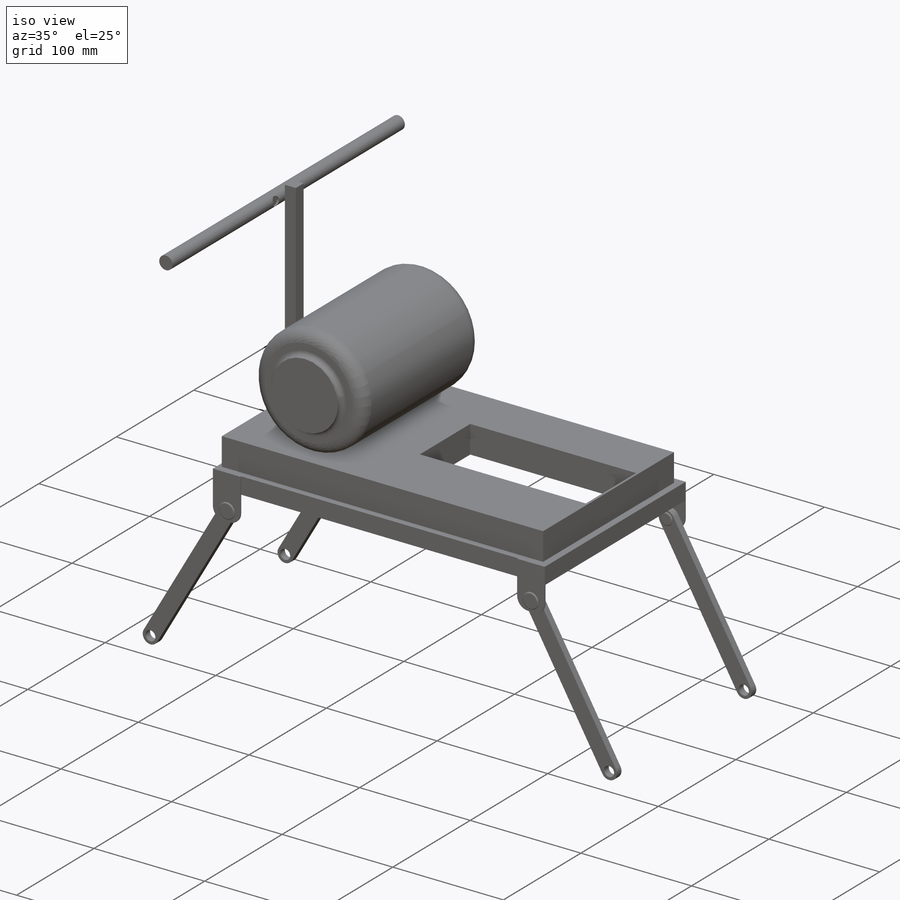
[diagram: iso view]
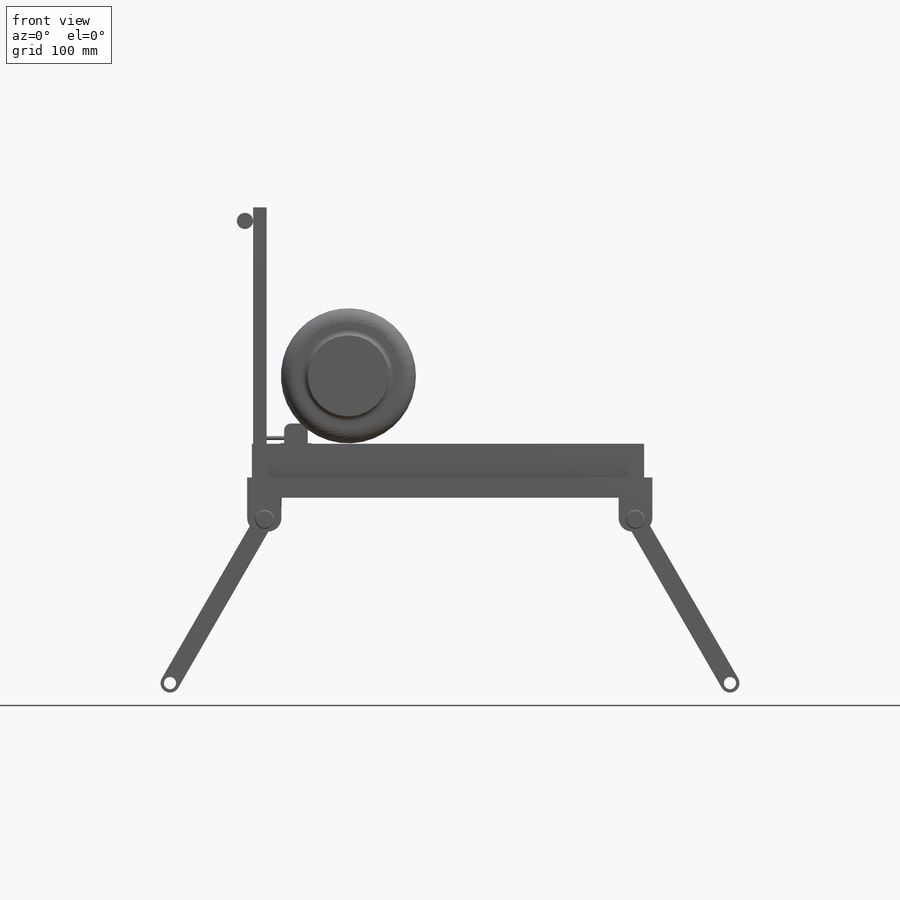
[diagram: front view]
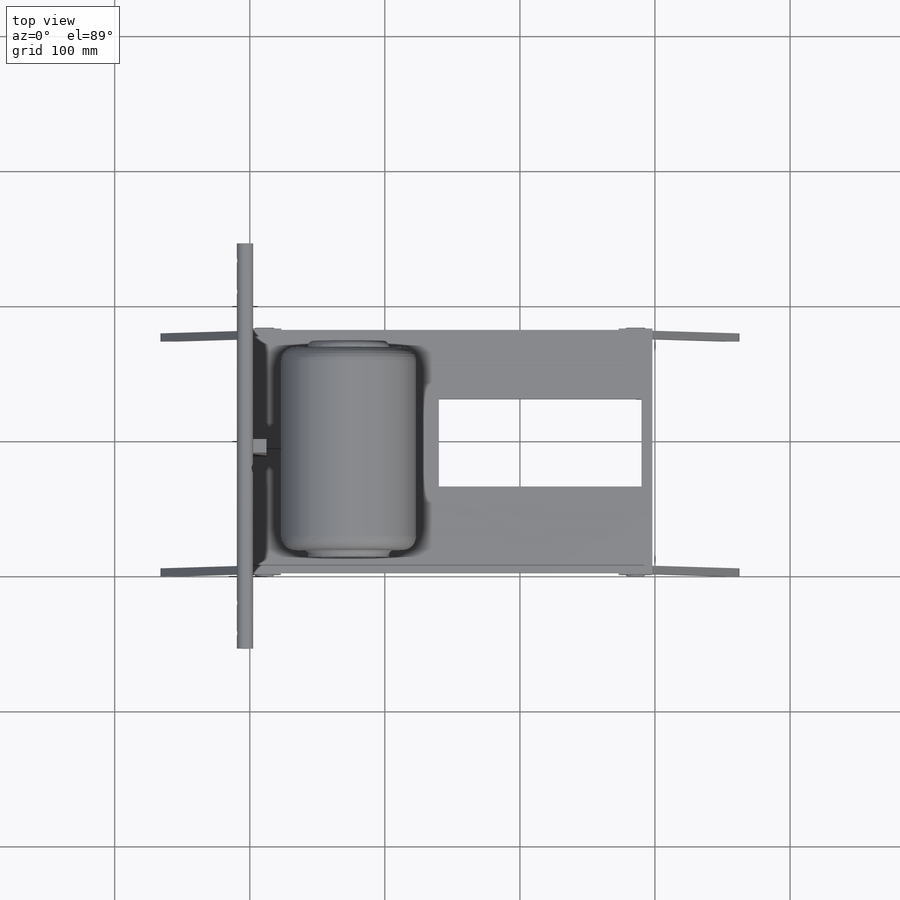
[diagram: top view]
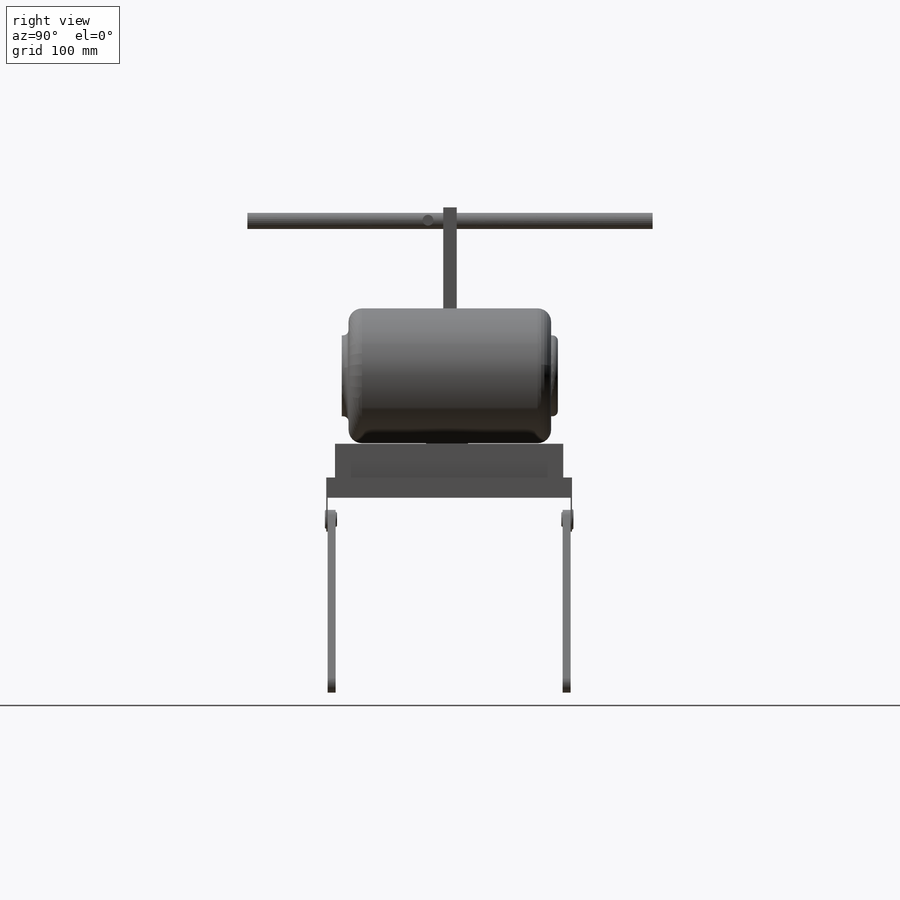
[diagram: right view]
SOLIDWORKS PART (.sldprt)
format: sldprt  version: not decoded by parser v0  size: 702,976 bytes
history: native  units: mm
features: sketch x25, extrude x19, fillet x8, cut_extrude x5, material x1, plane x1 (+11 scaffold rows collapsed)
feature tree (70):
  scaffold x11  (default folders/planes/origin — collapsed)
  material  "Material <not specified>"
  sketch  "Sketch1"  dims[D1=15.0mm]
  extrude  "Boss-Extrude1"  Depth=180mm
  sketch  "Sketch2"
  cut_extrude  "Cut-Extrude1"  Depth=180mm
  sketch  "Sketch3"
  extrude  "Boss-Extrude2"  Depth=25mm
  sketch  "Sketch4"  dims[D1=25.0mm]
  extrude  "Boss-Extrude3"  Depth=1mm
  sketch  "Sketch5"  dims[D1=10.0mm D2=10.0mm]
  extrude  "Boss-Extrude4"  Depth=1mm
  sketch  "Sketch6"  dims[D1=~4.984544mm]
  cut_extrude  "Cut-Extrude2"  Depth=200mm
  sketch  "Sketch7"  dims[c1.D2=7.0mm c1.D5=7.0mm c1.D7=~11.318783mm c1.D1=70.0mm c1.D3=140.0mm c2.D1=140.0mm c2.D4=70.0mm c2.D6=70.0mm]
  extrude  "Boss-Extrude5"  Depth=6mm
  sketch  "Sketch8"  dims[c1.D1=7.0mm c1.D3=~6.797135mm c1.D2=7.0mm c2.D3=~41.523036mm c2.D2=140.0mm c3.D3=140.0mm c3.D4=140.0mm]
  extrude  "Boss-Extrude6"  Depth=6mm
  sketch  "Sketch15"  dims[D1=~7.92062mm]
  extrude  "Boss-Extrude13"  Depth=1mm
  fillet  "Fillet2"  Radius=1mm
  fillet  "Fillet3"  Radius=1mm
  sketch  "Sketch16"  dims[D1=~6.127071mm]
  extrude  "Boss-Extrude14"  Depth=1mm
  fillet  "Fillet4"  Radius=1mm
  sketch  "Sketch17"  dims[D1=~5.252847mm]
  extrude  "Boss-Extrude15"  Depth=1mm
  fillet  "Fillet5"  Radius=1mm
  sketch  "Sketch18"  dims[D1=~11.186226mm]
  extrude  "Boss-Extrude16"  Depth=1mm
  fillet  "Fillet6"  Radius=1mm
  sketch  "Sketch25"
  extrude  "Boss-Extrude22"  Depth=2mm
  sketch  "Sketch28"  dims[D1=10.0mm]
  extrude  "Boss-Extrude25"  Depth=175mm
  sketch  "Sketch30"  dims[D1=~5.303008mm]
  extrude  "Boss-Extrude26"  Depth=145mm
  sketch  "Sketch31"  dims[D1=~2.754503mm]
  cut_extrude  "Cut-Extrude3"  Depth=15mm
  sketch  "Sketch32"  dims[D1=~4.144507mm]
  cut_extrude  "Cut-Extrude4"  Depth=2mm
  sketch  "Sketch33"
  extrude  "Boss-Extrude27"  Depth=15mm
  fillet  "Fillet7"  Radius=5mm
  sketch  "Sketch34"  dims[c1.D1=~2.542198mm c2.D1=5.0mm c2.D2=35.0mm c2.D5=0.5mm c2.D6=10.0mm c2.D7=5.0mm]
  sketch  "Sketch35"  dims[D1=~0.693837mm]
  extrude  "Boss-Extrude28"  Depth=0.5mm
  sketch  "Sketch36"  dims[D1=~2.273092mm]
  extrude  "Boss-Extrude29"  Depth=14mm
  plane  "Plane1"  Offset=10mm
  sketch  "Sketch38"  dims[D1=~42.609013mm]
  extrude  "Boss-Extrude31"  Depth=150mm
  sketch  "Sketch39"  dims[D1=~32.09253mm]
  extrude  "Boss-Extrude32"  Depth=5mm
  sketch  "Sketch40"  dims[D1=~31.202261mm]
  extrude  "Boss-Extrude33"  Depth=5mm
  fillet  "Fillet8"  Radius=10mm
  fillet  "Fillet9"  Radius=4mm
  sketch  "Sketch41"  dims[D1=150.0mm]
  cut_extrude  "Cut-Extrude5"  Depth=40mm
decode coverage: 53 of 57 modeling features carry decoded parameters
note: ~ marks probable driven/reference dimensions
note: suppression state not decoded; provenance and decode notes live in map.json
